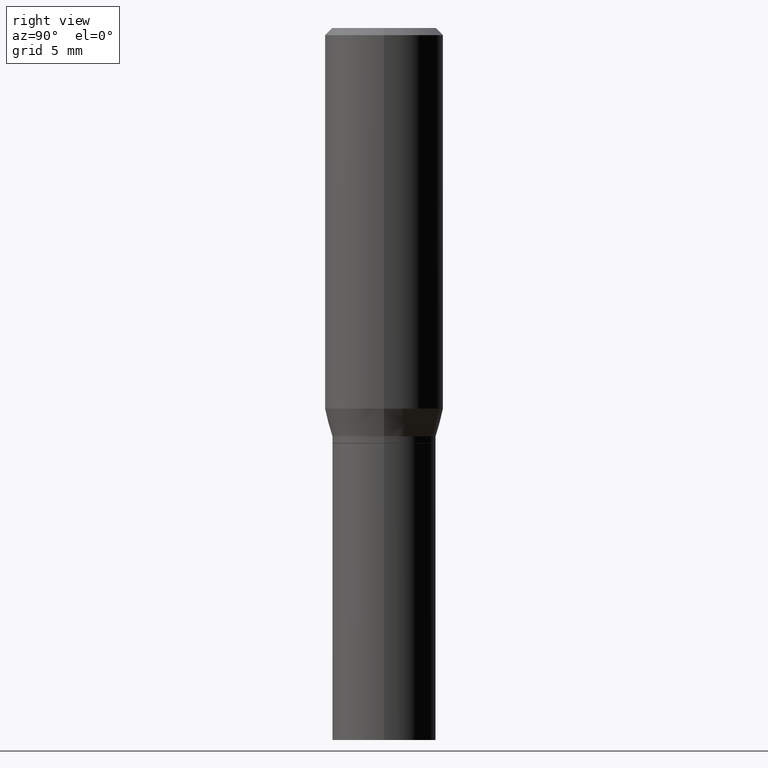
[diagram: clean part render]
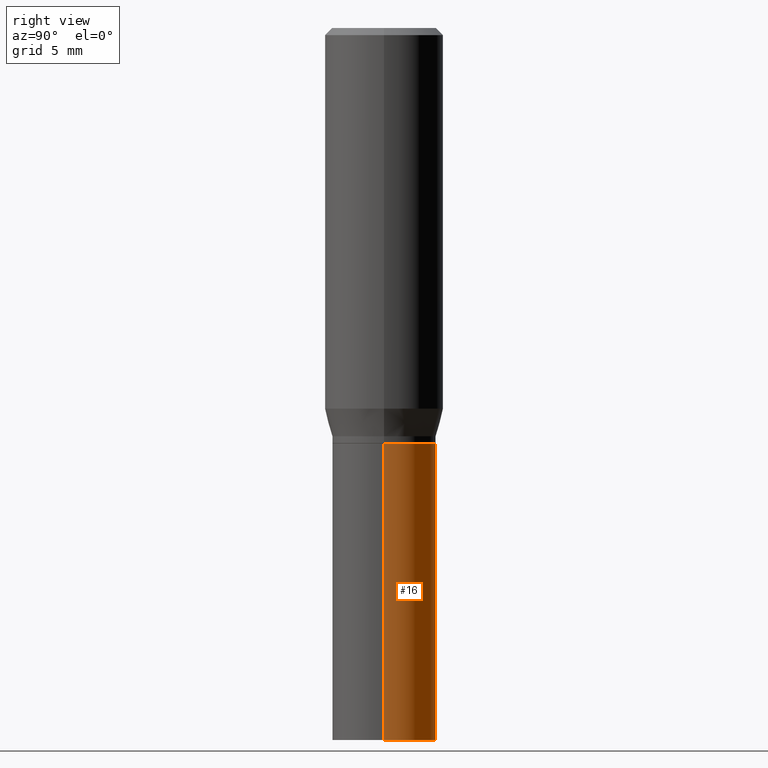
[diagram: same view with one face highlighted and labeled with its STEP entity id]
A machine part, right view. The second image highlights one B-rep face of the part: STEP entity #16.
In plain terms, the highlighted cylindrical surface (partial cylindrical patch) has radius 2.7788 mm, axis along (-0, 0, 1).
Its self-contained STEP definition (entity closure, byte-faithful):
#6 = CARTESIAN_POINT ( 'NONE',  ( 3.668203209277704895E-29, -5.237222008264718177E-15, -1.500000000000000222 ) ) ;
#16 = ADVANCED_FACE ( 'NONE', ( #149 ), #277, .T. ) ;
#23 = LINE ( 'NONE', #135, #461 ) ;
#34 = CARTESIAN_POINT ( 'NONE',  ( -0.1093999999999999972, -3.368800336954685870E-15, -1.500000000000000222 ) ) ;
#43 = VERTEX_POINT ( 'NONE', #347 ) ;
#47 = AXIS2_PLACEMENT_3D ( 'NONE', #6, #212, #147 ) ;
#49 = ORIENTED_EDGE ( 'NONE', *, *, #359, .F. ) ;
#106 = EDGE_CURVE ( 'NONE', #43, #226, #384, .T. ) ;
#107 = CARTESIAN_POINT ( 'NONE',  ( -0.1093999999999999972, -3.368800336954685870E-15, -0.8750000000000001110 ) ) ;
#111 = EDGE_CURVE ( 'NONE', #186, #142, #23, .T. ) ;
#114 = CARTESIAN_POINT ( 'NONE',  ( 2.139785205411994522E-29, -3.055046171487752730E-15, -0.8750000000000001110 ) ) ;
#124 = ORIENTED_EDGE ( 'NONE', *, *, #106, .F. ) ;
#135 = CARTESIAN_POINT ( 'NONE',  ( -0.1093999999999999972, 7.773337529215495838E-16, -5.381314988738867416E-30 ) ) ;
#142 = VERTEX_POINT ( 'NONE', #107 ) ;
#147 = DIRECTION ( 'NONE',  ( 1.000000000000000000, -6.982962677686269866E-15, 0.000000000000000000 ) ) ;
#149 = FACE_OUTER_BOUND ( 'NONE', #406, .T. ) ;
#165 = CARTESIAN_POINT ( 'NONE',  ( 0.1093999999999999972, -7.639361169388775718E-16, 5.334537392720753909E-30 ) ) ;
#176 = CARTESIAN_POINT ( 'NONE',  ( 0.1093999999999999972, -3.818982288426630302E-15, -0.8750000000000001110 ) ) ;
#180 = DIRECTION ( 'NONE',  ( -2.445468806185136597E-29, 3.491481338843145583E-15, 1.000000000000000000 ) ) ;
#186 = VERTEX_POINT ( 'NONE', #34 ) ;
#212 = DIRECTION ( 'NONE',  ( -2.445468806185136597E-29, 3.491481338843145583E-15, 1.000000000000000000 ) ) ;
#226 = VERTEX_POINT ( 'NONE', #176 ) ;
#242 = DIRECTION ( 'NONE',  ( -2.445468806185136877E-29, 3.491481338843145188E-15, 1.000000000000000000 ) ) ;
#243 = EDGE_CURVE ( 'NONE', #43, #186, #246, .T. ) ;
#246 = CIRCLE ( 'NONE', #47, 0.1093999999999999972 ) ;
#268 = ORIENTED_EDGE ( 'NONE', *, *, #243, .T. ) ;
#274 = DIRECTION ( 'NONE',  ( -2.445468806185136597E-29, 3.491481338843145583E-15, 1.000000000000000000 ) ) ;
#277 = CYLINDRICAL_SURFACE ( 'NONE', #432, 0.1093999999999999972 ) ;
#304 = AXIS2_PLACEMENT_3D ( 'NONE', #114, #180, #335 ) ;
#335 = DIRECTION ( 'NONE',  ( 1.000000000000000000, -6.982962677686269866E-15, 0.000000000000000000 ) ) ;
#343 = DIRECTION ( 'NONE',  ( -2.445468806185136877E-29, 3.491481338843145188E-15, 1.000000000000000000 ) ) ;
#345 = VECTOR ( 'NONE', #343, 39.37007874015748143 ) ;
#347 = CARTESIAN_POINT ( 'NONE',  ( 0.1093999999999999972, -6.001158125203596537E-15, -1.500000000000000222 ) ) ;
#359 = EDGE_CURVE ( 'NONE', #226, #142, #433, .T. ) ;
#384 = LINE ( 'NONE', #165, #345 ) ;
#388 = CARTESIAN_POINT ( 'NONE',  ( 0.000000000000000000, 0.000000000000000000, 0.000000000000000000 ) ) ;
#396 = ORIENTED_EDGE ( 'NONE', *, *, #111, .T. ) ;
#406 = EDGE_LOOP ( 'NONE', ( #268, #396, #49, #124 ) ) ;
#426 = DIRECTION ( 'NONE',  ( 1.000000000000000000, -6.982962677686266711E-15, 4.876176775795935793E-29 ) ) ;
#432 = AXIS2_PLACEMENT_3D ( 'NONE', #388, #274, #426 ) ;
#433 = CIRCLE ( 'NONE', #304, 0.1093999999999999972 ) ;
#461 = VECTOR ( 'NONE', #242, 39.37007874015748143 ) ;